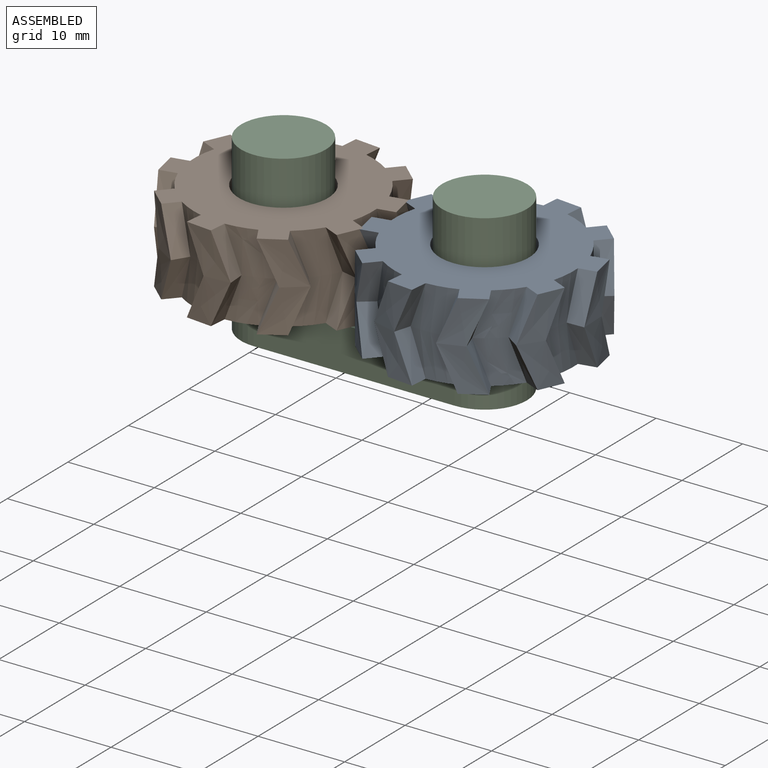
[diagram: assembled view]
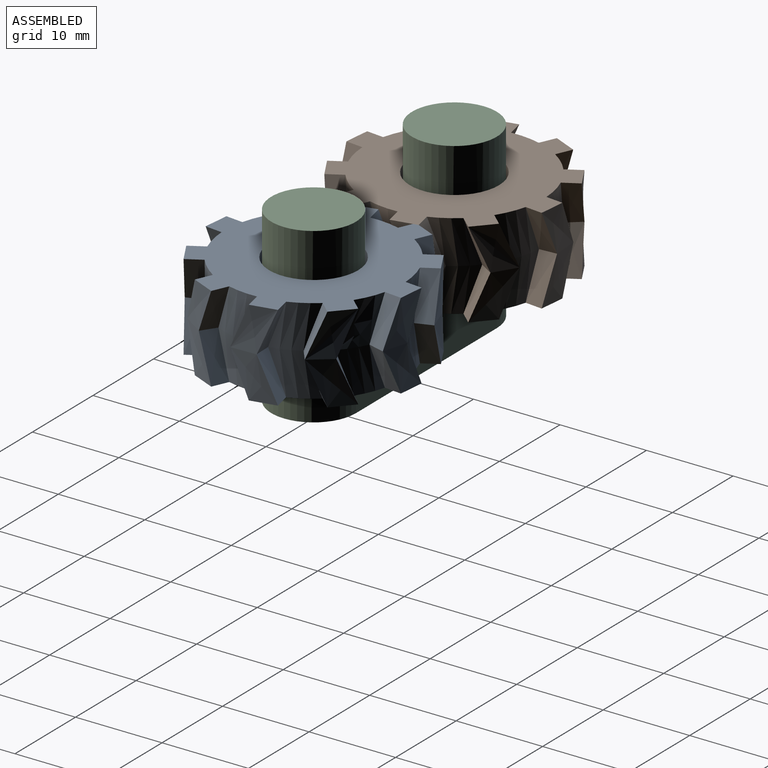
[diagram: assembled view, second angle]
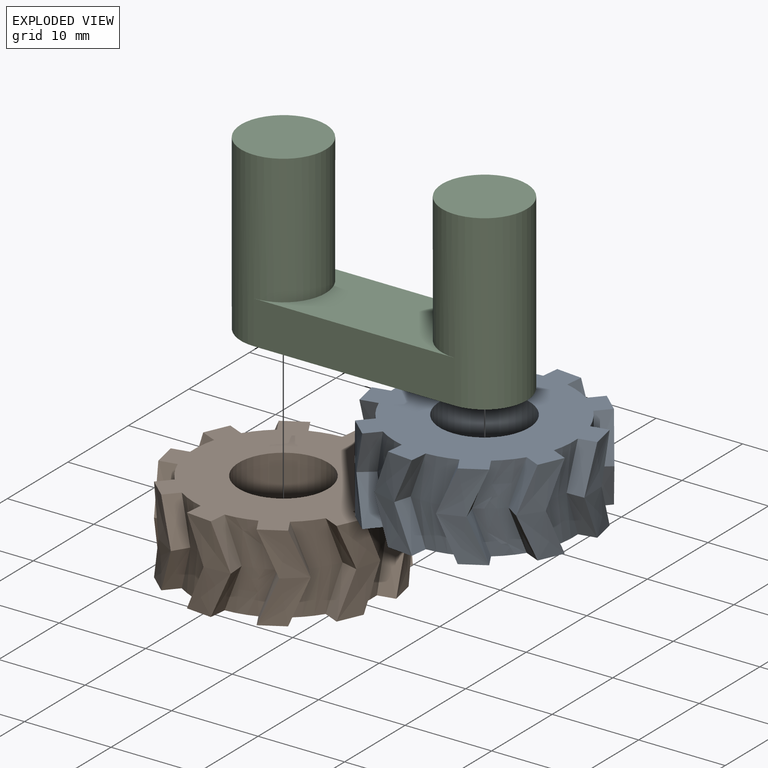
[diagram: exploded view]
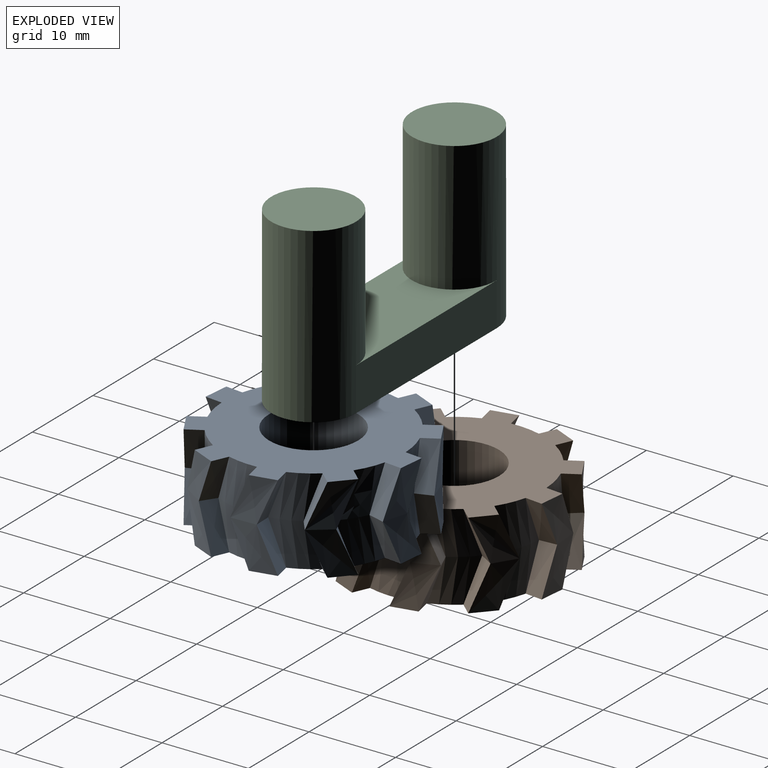
[diagram: exploded view, second angle]
ASSEMBLY  parts=3 mates=2
PART A: 83 faces, bbox 24.7x24.6x10 mm
  f0: plane 24.47x24.2mm, normal (0,0,-1), area 310.7mm2, adj f1,f2,f3,f4,f5,f6,f7,f8
  f1: bspline ~5x2.84mm, area 10.7mm2, adj f0,f2,f40,f42
  f2: bspline ~5x3.95mm, area 17.4mm2, adj f0,f1,f3,f43
  f3: bspline ~5x2.94mm, area 10.7mm2, adj f0,f2,f4,f44
  f4: bspline ~5x4.39mm, area 15mm2, adj f0,f3,f5,f45
  f5: bspline ~5x2.84mm, area 10.7mm2, adj f0,f4,f6,f46
  f6: bspline ~5.1x5mm, area 17.4mm2, adj f0,f5,f7,f47
  f7: bspline ~5x2.15mm, area 10.7mm2, adj f0,f6,f8,f48
  f8: bspline ~5.1x5mm, area 15mm2, adj f0,f7,f9,f49
  f9: bspline ~5x2.42mm, area 10.7mm2, adj f0,f8,f10,f50
  f10: bspline ~5x4.82mm, area 17.4mm2, adj f0,f9,f11,f51
  f11: bspline ~5x2.96mm, area 10.7mm2, adj f0,f10,f12,f52
  f12: bspline ~5x3.87mm, area 15mm2, adj f0,f11,f13,f53
  f13: bspline ~5x2.99mm, area 10.7mm2, adj f0,f12,f14,f54
  f14: bspline ~5x4.49mm, area 17.4mm2, adj f0,f13,f15,f55
  f15: bspline ~5x2.64mm, area 10.7mm2, adj f0,f14,f16,f56
  f16: bspline ~5x4.99mm, area 15mm2, adj f0,f15,f17,f57
  f17: bspline ~5x2.42mm, area 10.7mm2, adj f0,f16,f18,f58
  f18: bspline ~5.22x5mm, area 17.4mm2, adj f0,f17,f19,f59
  f19: bspline ~5x2.68mm, area 10.7mm2, adj f0,f18,f20,f60
  f20: bspline ~5x4.71mm, area 15mm2, adj f0,f19,f21,f61
  f21: bspline ~5x2.84mm, area 10.7mm2, adj f0,f20,f22,f62
  f22: bspline ~5x3.95mm, area 17.4mm2, adj f0,f21,f23,f63
  f23: bspline ~5x2.94mm, area 10.7mm2, adj f0,f22,f24,f64
  f24: bspline ~5x4.39mm, area 15mm2, adj f0,f23,f25,f65
  f25: bspline ~5x2.84mm, area 10.7mm2, adj f0,f24,f26,f66
  f26: bspline ~5.1x5mm, area 17.4mm2, adj f0,f25,f27,f67
  f27: bspline ~5x2.15mm, area 10.7mm2, adj f0,f26,f28,f68
  f28: bspline ~5.1x5mm, area 15mm2, adj f0,f27,f29,f69
  f29: bspline ~5x2.42mm, area 10.7mm2, adj f0,f28,f30,f70
  f30: bspline ~5x4.82mm, area 17.4mm2, adj f0,f29,f31,f71
  f31: bspline ~5x2.96mm, area 10.7mm2, adj f0,f30,f32,f72
  f32: bspline ~5x3.87mm, area 15mm2, adj f0,f31,f33,f73
  f33: bspline ~5x2.99mm, area 10.7mm2, adj f0,f32,f34,f74
  f34: bspline ~5x4.49mm, area 17.4mm2, adj f0,f33,f35,f75
  f35: bspline ~5x2.64mm, area 10.7mm2, adj f0,f34,f36,f76
  f36: bspline ~5x4.99mm, area 15mm2, adj f0,f35,f37,f77
  f37: bspline ~5x2.42mm, area 10.7mm2, adj f0,f36,f38,f78
  f38: bspline ~5.22x5mm, area 17.4mm2, adj f0,f37,f39,f79
  f39: bspline ~5x2.68mm, area 10.7mm2, adj f0,f38,f40,f80
  f40: bspline ~5x4.71mm, area 15mm2, adj f0,f1,f39,f81
  f41: plane 24.47x24.2mm, normal (0,0,1), area 310.7mm2, adj f42,f43,f44,f45,f46,f47,f48,f49
  f42: bspline ~5x2.84mm, area 10.7mm2, adj f1,f41,f43,f81
  f43: bspline ~5x3.95mm, area 17.4mm2, adj f2,f41,f42,f44
  f44: bspline ~5x2.94mm, area 10.7mm2, adj f3,f41,f43,f45
  f45: bspline ~5x4.39mm, area 15mm2, adj f4,f41,f44,f46
  f46: bspline ~5x2.84mm, area 10.7mm2, adj f5,f41,f45,f47
  f47: bspline ~5.1x5mm, area 17.4mm2, adj f6,f41,f46,f48
  f48: bspline ~5x2.15mm, area 10.7mm2, adj f7,f41,f47,f49
  f49: bspline ~5.1x5mm, area 15mm2, adj f8,f41,f48,f50
  f50: bspline ~5x2.42mm, area 10.7mm2, adj f9,f41,f49,f51
  f51: bspline ~5x4.82mm, area 17.4mm2, adj f10,f41,f50,f52
  f52: bspline ~5x2.96mm, area 10.7mm2, adj f11,f41,f51,f53
  f53: bspline ~5x3.87mm, area 15mm2, adj f12,f41,f52,f54
  f54: bspline ~5x2.99mm, area 10.7mm2, adj f13,f41,f53,f55
  f55: bspline ~5x4.49mm, area 17.4mm2, adj f14,f41,f54,f56
  f56: bspline ~5x2.64mm, area 10.7mm2, adj f15,f41,f55,f57
  f57: bspline ~5x4.99mm, area 15mm2, adj f16,f41,f56,f58
  f58: bspline ~5x2.42mm, area 10.7mm2, adj f17,f41,f57,f59
  f59: bspline ~5.22x5mm, area 17.4mm2, adj f18,f41,f58,f60
  f60: bspline ~5x2.68mm, area 10.7mm2, adj f19,f41,f59,f61
  f61: bspline ~5x4.71mm, area 15mm2, adj f20,f41,f60,f62
  f62: bspline ~5x2.84mm, area 10.7mm2, adj f21,f41,f61,f63
  f63: bspline ~5x3.95mm, area 17.4mm2, adj f22,f41,f62,f64
  f64: bspline ~5x2.94mm, area 10.7mm2, adj f23,f41,f63,f65
  f65: bspline ~5x4.39mm, area 15mm2, adj f24,f41,f64,f66
  f66: bspline ~5x2.84mm, area 10.7mm2, adj f25,f41,f65,f67
  f67: bspline ~5.1x5mm, area 17.4mm2, adj f26,f41,f66,f68
  f68: bspline ~5x2.15mm, area 10.7mm2, adj f27,f41,f67,f69
  f69: bspline ~5.1x5mm, area 15mm2, adj f28,f41,f68,f70
  f70: bspline ~5x2.42mm, area 10.7mm2, adj f29,f41,f69,f71
  f71: bspline ~5x4.82mm, area 17.4mm2, adj f30,f41,f70,f72
  f72: bspline ~5x2.96mm, area 10.7mm2, adj f31,f41,f71,f73
  f73: bspline ~5x3.87mm, area 15mm2, adj f32,f41,f72,f74
  f74: bspline ~5x2.99mm, area 10.7mm2, adj f33,f41,f73,f75
  f75: bspline ~5x4.49mm, area 17.4mm2, adj f34,f41,f74,f76
  f76: bspline ~5x2.64mm, area 10.7mm2, adj f35,f41,f75,f77
  f77: bspline ~5x4.99mm, area 15mm2, adj f36,f41,f76,f78
  f78: bspline ~5x2.42mm, area 10.7mm2, adj f37,f41,f77,f79
  f79: bspline ~5.22x5mm, area 17.4mm2, adj f38,f41,f78,f80
  f80: bspline ~5x2.68mm, area 10.7mm2, adj f39,f41,f79,f81
  f81: bspline ~5x4.71mm, area 15mm2, adj f40,f41,f42,f80
  f82: cylinder r=5.15mm len=10.3mm, axis (0,0,-1), area 323.6mm2, adj f0,f41
PART B: same geometry as A
PART C: 8 faces, bbox 33x9.8x20 mm
  f0: cylinder r=4.9mm len=20mm, axis (0,0,1), area 538.8mm2, adj f1,f3,f4,f5,f6
  f1: plane 23.25x5mm, normal (0,-1,0), area 116.2mm2, adj f0,f2,f4,f5
  f2: cylinder r=4.9mm len=20mm, axis (0,0,1), area 538.8mm2, adj f1,f3,f4,f5,f7
  f3: plane 23.25x5mm, normal (0,1,0), area 116.2mm2, adj f0,f2,f4,f5
  f4: plane 33.05x9.8mm, normal (0,0,-1), area 303.2mm2, adj f0,f1,f2,f3
  f5: plane 23.25x9.8mm, normal (0,0,1), area 152.4mm2, adj f0,f1,f2,f3
  f6: plane 9.8x9.8mm, normal (0,0,1), area 75.4mm2, adj f0
  f7: plane 9.8x9.8mm, normal (0,0,1), area 75.4mm2, adj f2
PLACE A rot(axis=(0,0,-1),149.9deg) t=(-54.89,-9.9,-2.78)mm
PLACE B rot(axis=(-0.97,-0.26,0),180deg) t=(-78.14,-9.9,7.22)mm
PLACE C t=(-78.14,-9.9,-2.78)mm fixed
MATE revolute C.f2 <-> A.f82  axis (0,0,1) through (-54.89,-9.9,-2.78)mm
MATE revolute B.f82 <-> C.f0  axis (0,0,1) through (-78.14,-9.9,-2.78)mm
